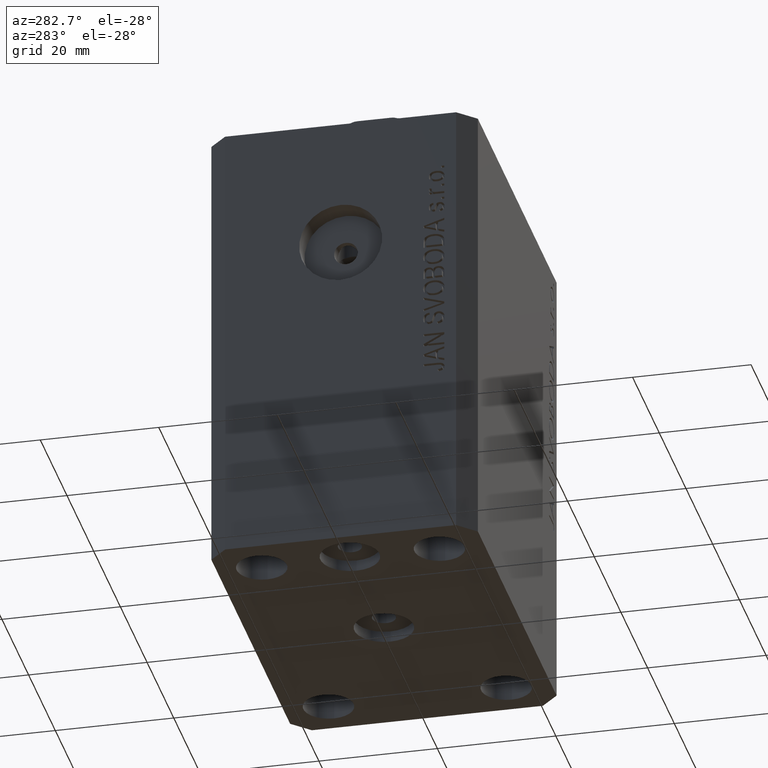
[diagram: clean part render]
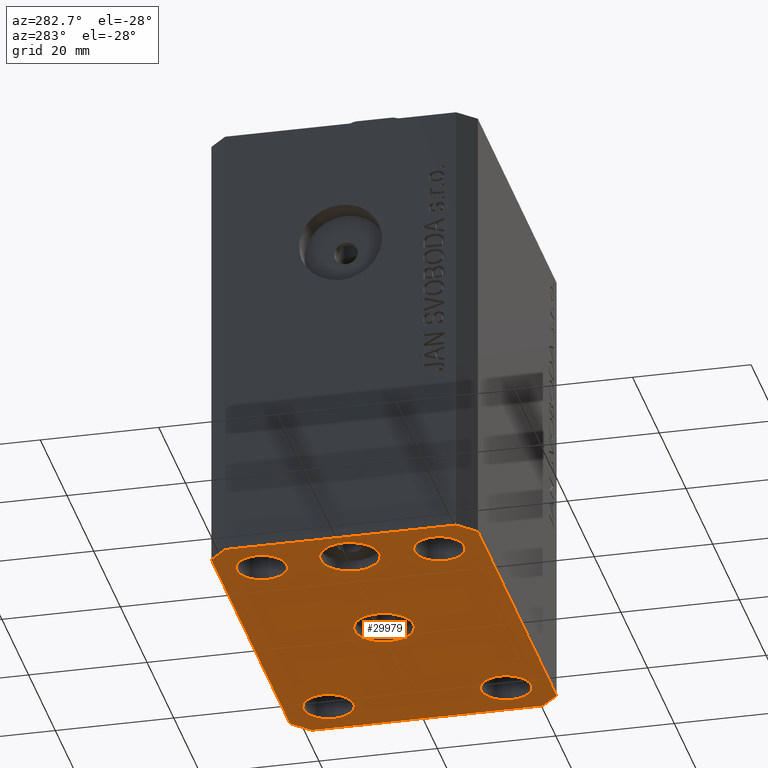
[diagram: same view with one face highlighted and labeled with its STEP entity id]
A machine part, auxiliary view. The second image highlights one B-rep face of the part: STEP entity #29979.
In plain terms, the highlighted planar face has unit normal (0, 0, 1).
Its self-contained STEP definition (entity closure, byte-faithful):
#38 = AXIS2_PLACEMENT_3D ( 'NONE', #33719, #37565, #30564 ) ;
#183 = CARTESIAN_POINT ( 'NONE',  ( 25.00000000000000000, 14.99999999999999289, -77.00000000000000000 ) ) ;
#548 = EDGE_CURVE ( 'NONE', #14623, #20975, #16682, .T. ) ;
#1392 = EDGE_LOOP ( 'NONE', ( #19163, #43073 ) ) ;
#1704 = CIRCLE ( 'NONE', #6778, 4.249999999976314058 ) ;
#1742 = DIRECTION ( 'NONE',  ( -0.000000000000000000, -0.000000000000000000, -1.000000000000000000 ) ) ;
#1858 = LINE ( 'NONE', #22432, #5163 ) ;
#2109 = CIRCLE ( 'NONE', #25927, 5.000000000000000000 ) ;
#2126 = CARTESIAN_POINT ( 'NONE',  ( -20.74999999995962341, -15.00000000000000355, -77.00000000000000000 ) ) ;
#3340 = EDGE_CURVE ( 'NONE', #43660, #42852, #1858, .T. ) ;
#3371 = DIRECTION ( 'NONE',  ( 1.334402673828349134E-14, 1.000000000000000000, 0.000000000000000000 ) ) ;
#3436 = FACE_BOUND ( 'NONE', #32300, .T. ) ;
#4659 = EDGE_CURVE ( 'NONE', #7229, #11513, #17567, .T. ) ;
#4744 = CARTESIAN_POINT ( 'NONE',  ( -20.74999999997862687, 14.99999999999999645, -77.00000000000000000 ) ) ;
#5163 = VECTOR ( 'NONE', #5248, 1000.000000000000000 ) ;
#5237 = ORIENTED_EDGE ( 'NONE', *, *, #29313, .F. ) ;
#5248 = DIRECTION ( 'NONE',  ( -0.7071067811865344721, 0.7071067811865606734, 0.000000000000000000 ) ) ;
#5277 = DIRECTION ( 'NONE',  ( -0.000000000000000000, -0.000000000000000000, -1.000000000000000000 ) ) ;
#5809 = EDGE_CURVE ( 'NONE', #22949, #18141, #9549, .T. ) ;
#6099 = EDGE_CURVE ( 'NONE', #6903, #35848, #16837, .T. ) ;
#6163 = FACE_BOUND ( 'NONE', #23989, .T. ) ;
#6200 = DIRECTION ( 'NONE',  ( 1.000000000000000000, 1.176083712526788232E-16, 0.000000000000000000 ) ) ;
#6615 = CIRCLE ( 'NONE', #25399, 4.999999999996659561 ) ;
#6778 = AXIS2_PLACEMENT_3D ( 'NONE', #11431, #28394, #18448 ) ;
#6903 = VERTEX_POINT ( 'NONE', #26116 ) ;
#6925 = DIRECTION ( 'NONE',  ( -0.7071067811865474617, -0.7071067811865474617, 0.000000000000000000 ) ) ;
#7017 = DIRECTION ( 'NONE',  ( 1.000000000000000000, 0.000000000000000000, 0.000000000000000000 ) ) ;
#7229 = VERTEX_POINT ( 'NONE', #14277 ) ;
#7530 = LINE ( 'NONE', #21326, #43072 ) ;
#8062 = VECTOR ( 'NONE', #6925, 1000.000000000000114 ) ;
#8268 = EDGE_CURVE ( 'NONE', #40303, #23689, #6615, .T. ) ;
#8321 = LINE ( 'NONE', #26629, #23746 ) ;
#8533 = EDGE_CURVE ( 'NONE', #34871, #43838, #36949, .T. ) ;
#8730 = DIRECTION ( 'NONE',  ( -1.000000000000000000, 0.000000000000000000, 0.000000000000000000 ) ) ;
#8774 = AXIS2_PLACEMENT_3D ( 'NONE', #44556, #30986, #7017 ) ;
#8845 = VECTOR ( 'NONE', #6200, 1000.000000000000000 ) ;
#9035 = CARTESIAN_POINT ( 'NONE',  ( 20.75000000002367884, -15.00000000000000355, -77.00000000000000000 ) ) ;
#9441 = CARTESIAN_POINT ( 'NONE',  ( 20.75000000004271072, 14.99999999999999289, -77.00000000000000000 ) ) ;
#9549 = CIRCLE ( 'NONE', #13172, 4.250000000040370374 ) ;
#9839 = AXIS2_PLACEMENT_3D ( 'NONE', #28262, #31419, #21477 ) ;
#9979 = DIRECTION ( 'NONE',  ( 1.000000000000000000, 0.000000000000000000, 0.000000000000000000 ) ) ;
#10246 = DIRECTION ( 'NONE',  ( -1.000000000000000000, 0.000000000000000000, 0.000000000000000000 ) ) ;
#10323 = ORIENTED_EDGE ( 'NONE', *, *, #8268, .F. ) ;
#10479 = EDGE_CURVE ( 'NONE', #17119, #43660, #26283, .T. ) ;
#10965 = ORIENTED_EDGE ( 'NONE', *, *, #27233, .F. ) ;
#11431 = CARTESIAN_POINT ( 'NONE',  ( 24.99999999999999289, -15.00000000000000355, -77.00000000000000000 ) ) ;
#11513 = VERTEX_POINT ( 'NONE', #29715 ) ;
#11801 = DIRECTION ( 'NONE',  ( 0.000000000000000000, 0.000000000000000000, -1.000000000000000000 ) ) ;
#12358 = DIRECTION ( 'NONE',  ( 0.000000000000000000, 0.000000000000000000, -1.000000000000000000 ) ) ;
#13172 = AXIS2_PLACEMENT_3D ( 'NONE', #32699, #1742, #15542 ) ;
#13223 = CARTESIAN_POINT ( 'NONE',  ( -20.50000000000333955, 6.123233995732674066E-16, -77.00000000000000000 ) ) ;
#13430 = CARTESIAN_POINT ( 'NONE',  ( -29.49999999999650413, -22.49999999999949907, -77.00000000000000000 ) ) ;
#13865 = CARTESIAN_POINT ( 'NONE',  ( -25.50000000000000000, 0.000000000000000000, -77.00000000000000000 ) ) ;
#13878 = EDGE_CURVE ( 'NONE', #20975, #14623, #1704, .T. ) ;
#13984 = DIRECTION ( 'NONE',  ( -0.000000000000000000, -0.000000000000000000, -1.000000000000000000 ) ) ;
#14277 = CARTESIAN_POINT ( 'NONE',  ( -29.49999999999650413, 22.49999999999949907, -77.00000000000000000 ) ) ;
#14623 = VERTEX_POINT ( 'NONE', #29182 ) ;
#15005 = CARTESIAN_POINT ( 'NONE',  ( -29.25000000002137668, 14.99999999999999645, -77.00000000000000000 ) ) ;
#15135 = DIRECTION ( 'NONE',  ( -0.000000000000000000, -0.000000000000000000, -1.000000000000000000 ) ) ;
#15333 = CARTESIAN_POINT ( 'NONE',  ( -5.000000000000000000, 0.000000000000000000, -77.00000000000000000 ) ) ;
#15459 = CARTESIAN_POINT ( 'NONE',  ( -25.00000000000000000, 14.99999999999999645, -77.00000000000000000 ) ) ;
#15542 = DIRECTION ( 'NONE',  ( 1.000000000000000000, 0.000000000000000000, 0.000000000000000000 ) ) ;
#15583 = CARTESIAN_POINT ( 'NONE',  ( -25.00000000000000000, 14.99999999999999645, -77.00000000000000000 ) ) ;
#15930 = EDGE_LOOP ( 'NONE', ( #43203, #10323 ) ) ;
#16682 = CIRCLE ( 'NONE', #38, 4.249999999976314058 ) ;
#16837 = LINE ( 'NONE', #13430, #8845 ) ;
#16946 = EDGE_LOOP ( 'NONE', ( #26745, #21752, #19477, #20605, #42085, #5237, #20198, #24697 ) ) ;
#17000 = EDGE_LOOP ( 'NONE', ( #22886, #29804 ) ) ;
#17090 = ORIENTED_EDGE ( 'NONE', *, *, #13878, .F. ) ;
#17119 = VERTEX_POINT ( 'NONE', #39142 ) ;
#17250 = FACE_BOUND ( 'NONE', #17000, .T. ) ;
#17567 = LINE ( 'NONE', #24111, #8062 ) ;
#18141 = VERTEX_POINT ( 'NONE', #2126 ) ;
#18448 = DIRECTION ( 'NONE',  ( 1.000000000000000000, 0.000000000000000000, 0.000000000000000000 ) ) ;
#19077 = DIRECTION ( 'NONE',  ( 1.000000000000000000, 0.000000000000000000, 0.000000000000000000 ) ) ;
#19163 = ORIENTED_EDGE ( 'NONE', *, *, #19952, .F. ) ;
#19407 = CARTESIAN_POINT ( 'NONE',  ( 32.49999999999702993, 19.49999999999945999, -77.00000000000000000 ) ) ;
#19477 = ORIENTED_EDGE ( 'NONE', *, *, #10479, .F. ) ;
#19524 = EDGE_CURVE ( 'NONE', #23689, #40303, #28022, .T. ) ;
#19623 = DIRECTION ( 'NONE',  ( 0.000000000000000000, -1.000000000000000000, 0.000000000000000000 ) ) ;
#19952 = EDGE_CURVE ( 'NONE', #18141, #22949, #21506, .T. ) ;
#19958 = VERTEX_POINT ( 'NONE', #4744 ) ;
#20094 = CARTESIAN_POINT ( 'NONE',  ( 29.49999999999707967, 22.49999999999952038, -77.00000000000000000 ) ) ;
#20116 = DIRECTION ( 'NONE',  ( 0.7071067811865474617, -0.7071067811865474617, 0.000000000000000000 ) ) ;
#20198 = ORIENTED_EDGE ( 'NONE', *, *, #43651, .F. ) ;
#20605 = ORIENTED_EDGE ( 'NONE', *, *, #37982, .F. ) ;
#20623 = DIRECTION ( 'NONE',  ( 0.000000000000000000, 0.000000000000000000, 1.000000000000000000 ) ) ;
#20975 = VERTEX_POINT ( 'NONE', #9035 ) ;
#21078 = CARTESIAN_POINT ( 'NONE',  ( 29.49999999999650413, -22.49999999999949196, -77.00000000000000000 ) ) ;
#21326 = CARTESIAN_POINT ( 'NONE',  ( 29.49999999999650413, -22.49999999999949196, -77.00000000000000000 ) ) ;
#21477 = DIRECTION ( 'NONE',  ( -1.000000000000000000, 0.000000000000000000, 0.000000000000000000 ) ) ;
#21506 = CIRCLE ( 'NONE', #27278, 4.250000000040370374 ) ;
#21541 = DIRECTION ( 'NONE',  ( -1.000000000000000000, 0.000000000000000000, 0.000000000000000000 ) ) ;
#21663 = AXIS2_PLACEMENT_3D ( 'NONE', #15459, #5277, #19077 ) ;
#21752 = ORIENTED_EDGE ( 'NONE', *, *, #3340, .F. ) ;
#22300 = LINE ( 'NONE', #40149, #38649 ) ;
#22432 = CARTESIAN_POINT ( 'NONE',  ( 32.49999999999702993, 19.49999999999945999, -77.00000000000000000 ) ) ;
#22523 = CARTESIAN_POINT ( 'NONE',  ( 0.000000000000000000, 0.000000000000000000, -77.00000000000000000 ) ) ;
#22841 = CIRCLE ( 'NONE', #9839, 5.000000000000000000 ) ;
#22886 = ORIENTED_EDGE ( 'NONE', *, *, #36970, .F. ) ;
#22949 = VERTEX_POINT ( 'NONE', #24797 ) ;
#23049 = EDGE_CURVE ( 'NONE', #29826, #39722, #2109, .T. ) ;
#23341 = FACE_BOUND ( 'NONE', #15930, .T. ) ;
#23430 = CIRCLE ( 'NONE', #38553, 4.249999999957291053 ) ;
#23689 = VERTEX_POINT ( 'NONE', #36678 ) ;
#23746 = VECTOR ( 'NONE', #19623, 1000.000000000000000 ) ;
#23989 = EDGE_LOOP ( 'NONE', ( #36908, #37863 ) ) ;
#24111 = CARTESIAN_POINT ( 'NONE',  ( -29.49999999999650413, 22.49999999999949907, -77.00000000000000000 ) ) ;
#24255 = CIRCLE ( 'NONE', #44462, 4.250000000021375790 ) ;
#24697 = ORIENTED_EDGE ( 'NONE', *, *, #4659, .F. ) ;
#24797 = CARTESIAN_POINT ( 'NONE',  ( -29.25000000004036593, -15.00000000000000355, -77.00000000000000000 ) ) ;
#24957 = CARTESIAN_POINT ( 'NONE',  ( 5.000000000000000000, 6.123233995736765296E-16, -77.00000000000000000 ) ) ;
#25399 = AXIS2_PLACEMENT_3D ( 'NONE', #13865, #33750, #10246 ) ;
#25626 = EDGE_CURVE ( 'NONE', #19958, #29690, #26731, .T. ) ;
#25927 = AXIS2_PLACEMENT_3D ( 'NONE', #22523, #12358, #8730 ) ;
#26116 = CARTESIAN_POINT ( 'NONE',  ( -29.49999999999650413, -22.49999999999949907, -77.00000000000000000 ) ) ;
#26283 = LINE ( 'NONE', #37730, #37008 ) ;
#26369 = DIRECTION ( 'NONE',  ( -1.000000000000000000, -3.528251137580330676E-16, 0.000000000000000000 ) ) ;
#26629 = CARTESIAN_POINT ( 'NONE',  ( -32.49999999999650413, 19.49999999999949907, -77.00000000000000000 ) ) ;
#26731 = CIRCLE ( 'NONE', #21663, 4.250000000021375790 ) ;
#26745 = ORIENTED_EDGE ( 'NONE', *, *, #35260, .F. ) ;
#27155 = CARTESIAN_POINT ( 'NONE',  ( -24.99999999999999289, -15.00000000000000355, -77.00000000000000000 ) ) ;
#27233 = EDGE_CURVE ( 'NONE', #43838, #34871, #23430, .T. ) ;
#27278 = AXIS2_PLACEMENT_3D ( 'NONE', #27155, #40937, #9979 ) ;
#28022 = CIRCLE ( 'NONE', #35949, 4.999999999996659561 ) ;
#28262 = CARTESIAN_POINT ( 'NONE',  ( 0.000000000000000000, 0.000000000000000000, -77.00000000000000000 ) ) ;
#28334 = DIRECTION ( 'NONE',  ( 0.7071067811865483499, 0.7071067811865466846, 0.000000000000000000 ) ) ;
#28394 = DIRECTION ( 'NONE',  ( -0.000000000000000000, -0.000000000000000000, -1.000000000000000000 ) ) ;
#29182 = CARTESIAN_POINT ( 'NONE',  ( 29.24999999997631051, -15.00000000000000355, -77.00000000000000000 ) ) ;
#29313 = EDGE_CURVE ( 'NONE', #43512, #6903, #40457, .T. ) ;
#29690 = VERTEX_POINT ( 'NONE', #15005 ) ;
#29715 = CARTESIAN_POINT ( 'NONE',  ( -32.49999999999650413, 19.49999999999949907, -77.00000000000000000 ) ) ;
#29804 = ORIENTED_EDGE ( 'NONE', *, *, #23049, .F. ) ;
#29826 = VERTEX_POINT ( 'NONE', #24957 ) ;
#29979 = ADVANCED_FACE ( 'NONE', ( #17250, #23341, #37569, #3436, #37124, #6163, #34403 ), #33723, .F. ) ;
#30464 = EDGE_LOOP ( 'NONE', ( #42432, #10965 ) ) ;
#30564 = DIRECTION ( 'NONE',  ( 1.000000000000000000, 0.000000000000000000, 0.000000000000000000 ) ) ;
#30986 = DIRECTION ( 'NONE',  ( -0.000000000000000000, -0.000000000000000000, -1.000000000000000000 ) ) ;
#31012 = DIRECTION ( 'NONE',  ( 1.000000000000000000, 0.000000000000000000, -0.000000000000000000 ) ) ;
#31419 = DIRECTION ( 'NONE',  ( 0.000000000000000000, 0.000000000000000000, -1.000000000000000000 ) ) ;
#32025 = VECTOR ( 'NONE', #20116, 1000.000000000000114 ) ;
#32300 = EDGE_LOOP ( 'NONE', ( #42810, #17090 ) ) ;
#32699 = CARTESIAN_POINT ( 'NONE',  ( -24.99999999999999289, -15.00000000000000355, -77.00000000000000000 ) ) ;
#33719 = CARTESIAN_POINT ( 'NONE',  ( 24.99999999999999289, -15.00000000000000355, -77.00000000000000000 ) ) ;
#33723 = PLANE ( 'NONE',  #36357 ) ;
#33750 = DIRECTION ( 'NONE',  ( 0.000000000000000000, 0.000000000000000000, -1.000000000000000000 ) ) ;
#33944 = CARTESIAN_POINT ( 'NONE',  ( 0.000000000000000000, 0.000000000000000000, -77.00000000000000000 ) ) ;
#34116 = CARTESIAN_POINT ( 'NONE',  ( -32.49999999999650413, -19.49999999999949907, -77.00000000000000000 ) ) ;
#34403 = FACE_OUTER_BOUND ( 'NONE', #16946, .T. ) ;
#34871 = VERTEX_POINT ( 'NONE', #40086 ) ;
#35260 = EDGE_CURVE ( 'NONE', #42852, #7229, #22300, .T. ) ;
#35848 = VERTEX_POINT ( 'NONE', #21078 ) ;
#35949 = AXIS2_PLACEMENT_3D ( 'NONE', #39383, #11801, #21541 ) ;
#36091 = EDGE_CURVE ( 'NONE', #29690, #19958, #24255, .T. ) ;
#36357 = AXIS2_PLACEMENT_3D ( 'NONE', #33944, #20623, #31012 ) ;
#36678 = CARTESIAN_POINT ( 'NONE',  ( -30.49999999999665690, 0.000000000000000000, -77.00000000000000000 ) ) ;
#36908 = ORIENTED_EDGE ( 'NONE', *, *, #25626, .F. ) ;
#36949 = CIRCLE ( 'NONE', #8774, 4.249999999957291053 ) ;
#36970 = EDGE_CURVE ( 'NONE', #39722, #29826, #22841, .T. ) ;
#37008 = VECTOR ( 'NONE', #3371, 1000.000000000000000 ) ;
#37124 = FACE_BOUND ( 'NONE', #30464, .T. ) ;
#37565 = DIRECTION ( 'NONE',  ( -0.000000000000000000, -0.000000000000000000, -1.000000000000000000 ) ) ;
#37569 = FACE_BOUND ( 'NONE', #1392, .T. ) ;
#37730 = CARTESIAN_POINT ( 'NONE',  ( 32.49999999999651124, -19.49999999999949196, -77.00000000000000000 ) ) ;
#37863 = ORIENTED_EDGE ( 'NONE', *, *, #36091, .F. ) ;
#37982 = EDGE_CURVE ( 'NONE', #35848, #17119, #7530, .T. ) ;
#38553 = AXIS2_PLACEMENT_3D ( 'NONE', #183, #13984, #41115 ) ;
#38630 = CARTESIAN_POINT ( 'NONE',  ( -32.49999999999650413, -19.49999999999949907, -77.00000000000000000 ) ) ;
#38649 = VECTOR ( 'NONE', #26369, 1000.000000000000000 ) ;
#38867 = DIRECTION ( 'NONE',  ( 1.000000000000000000, 0.000000000000000000, 0.000000000000000000 ) ) ;
#39142 = CARTESIAN_POINT ( 'NONE',  ( 32.49999999999651124, -19.49999999999949196, -77.00000000000000000 ) ) ;
#39383 = CARTESIAN_POINT ( 'NONE',  ( -25.50000000000000000, 0.000000000000000000, -77.00000000000000000 ) ) ;
#39722 = VERTEX_POINT ( 'NONE', #15333 ) ;
#40086 = CARTESIAN_POINT ( 'NONE',  ( 29.24999999995729283, 14.99999999999999289, -77.00000000000000000 ) ) ;
#40149 = CARTESIAN_POINT ( 'NONE',  ( 29.49999999999707967, 22.49999999999952038, -77.00000000000000000 ) ) ;
#40303 = VERTEX_POINT ( 'NONE', #13223 ) ;
#40457 = LINE ( 'NONE', #34116, #32025 ) ;
#40937 = DIRECTION ( 'NONE',  ( -0.000000000000000000, -0.000000000000000000, -1.000000000000000000 ) ) ;
#41115 = DIRECTION ( 'NONE',  ( 1.000000000000000000, 0.000000000000000000, 0.000000000000000000 ) ) ;
#42085 = ORIENTED_EDGE ( 'NONE', *, *, #6099, .F. ) ;
#42432 = ORIENTED_EDGE ( 'NONE', *, *, #8533, .F. ) ;
#42810 = ORIENTED_EDGE ( 'NONE', *, *, #548, .F. ) ;
#42852 = VERTEX_POINT ( 'NONE', #20094 ) ;
#43072 = VECTOR ( 'NONE', #28334, 1000.000000000000000 ) ;
#43073 = ORIENTED_EDGE ( 'NONE', *, *, #5809, .F. ) ;
#43203 = ORIENTED_EDGE ( 'NONE', *, *, #19524, .F. ) ;
#43512 = VERTEX_POINT ( 'NONE', #38630 ) ;
#43651 = EDGE_CURVE ( 'NONE', #11513, #43512, #8321, .T. ) ;
#43660 = VERTEX_POINT ( 'NONE', #19407 ) ;
#43838 = VERTEX_POINT ( 'NONE', #9441 ) ;
#44462 = AXIS2_PLACEMENT_3D ( 'NONE', #15583, #15135, #38867 ) ;
#44556 = CARTESIAN_POINT ( 'NONE',  ( 25.00000000000000000, 14.99999999999999289, -77.00000000000000000 ) ) ;